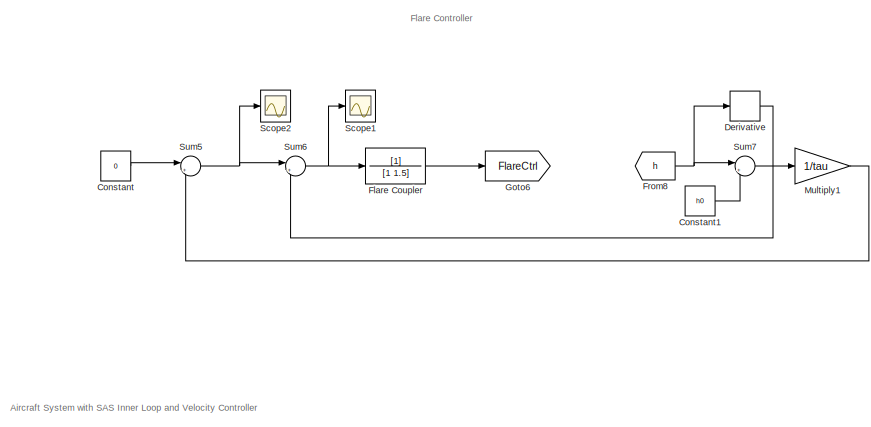
[diagram: root canvas - part 1/4, top left region]
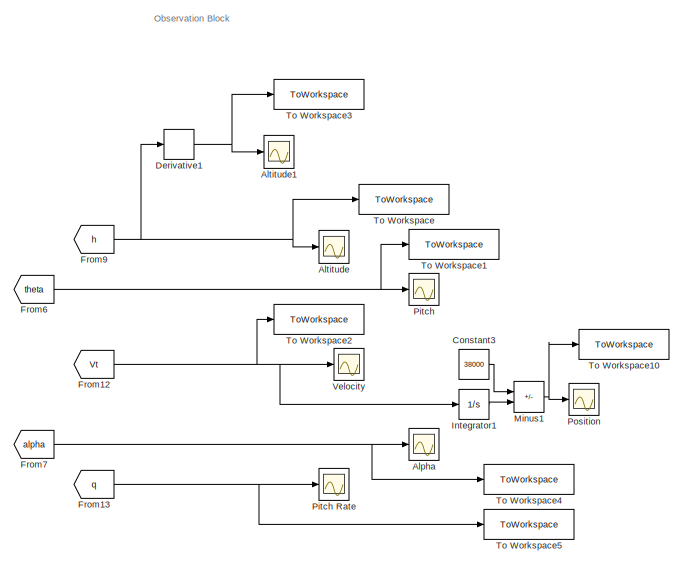
[diagram: root canvas - part 2/4, middle right region]
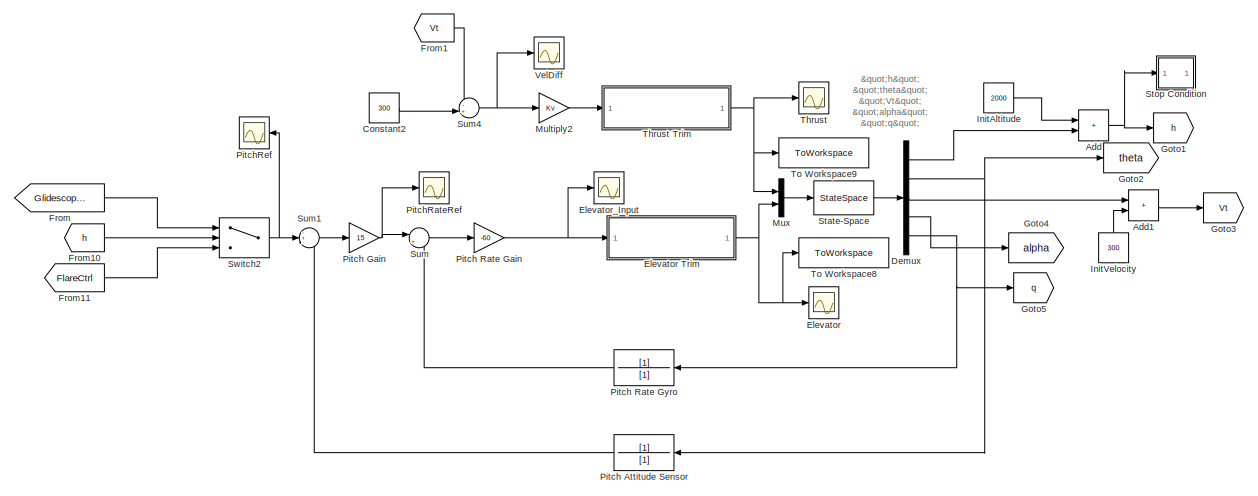
[diagram: root canvas - part 3/4, middle left region]
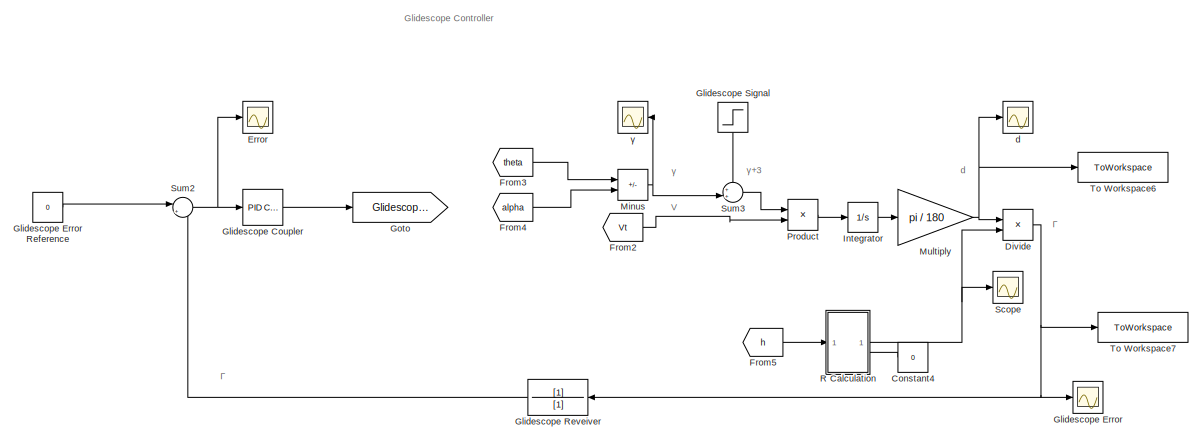
[diagram: root canvas - part 4/4, bottom left region]
MODEL slx_3c00ca6b378c
KIND model
CONFIG AbsTol = auto
CONFIG EnableMultiTasking = off
CONFIG FixedStep = auto
CONFIG MaxStep = auto
CONFIG MinStep = auto
CONFIG RelTol = 1e-3
CONFIG SampleTimeConstraint = Unconstrained
CONFIG SolverName = VariableStepAuto
CONFIG StartTime = 0.0
CONFIG StopTime = 250
BLOCK [Sum] Add
  IconShape = rectangular
BLOCK [Sum] Add1
  IconShape = rectangular
BLOCK [Scope] Alpha
  Floating = off
  NumInputPorts = 1
  ScopeSpecificationString = Simulink.scopes.TimeScopeBlockCfg('CurrentConfiguration', extmgr.ConfigurationSet(extmgr.Configuration('Core','General UI',true),extmgr.Configuration('Core','Source UI',true),extmgr.Configuration('Sources','WiredSimulink',true,'DataLoggingVariableName','ScopeData3'),extmgr.Configuration('Visuals','Time Domain',true,'SerializedDisplays',{struct('MinYLimReal','-5.64929','MaxYLimReal','2.93376','YLab...<+1484ch>
BLOCK [Scope] Altitude
  Floating = off
  NumInputPorts = 2
  ScopeSpecificationString = Simulink.scopes.TimeScopeBlockCfg('CurrentConfiguration', extmgr.ConfigurationSet(extmgr.Configuration('Core','General UI',true),extmgr.Configuration('Core','Source UI',true),extmgr.Configuration('Sources','WiredSimulink',true),extmgr.Configuration('Visuals','Time Domain',true,'SerializedDisplays',{struct('MinYLimReal','-155.81944','MaxYLimReal','2000.05527','YLabelReal','','MinYLimMag',' 0.00000'...<+1488ch>
BLOCK [Scope] Altitude1
  Floating = off
  NumInputPorts = 2
  ScopeSpecificationString = Simulink.scopes.TimeScopeBlockCfg('CurrentConfiguration', extmgr.ConfigurationSet(extmgr.Configuration('Core','General UI',true),extmgr.Configuration('Core','Source UI',true),extmgr.Configuration('Sources','WiredSimulink',true,'DataLoggingVariableName','ScopeData1'),extmgr.Configuration('Visuals','Time Domain',true,'SerializedDisplays',{struct('MinYLimReal','-28.09949','MaxYLimReal','3.73022','YLa...<+1546ch>
BLOCK [Constant] Constant
  Value = 0
BLOCK [Constant] Constant1
  Value = h0
BLOCK [Constant] Constant2
  Value = 300
BLOCK [Constant] Constant3
  Value = 38000
BLOCK [Constant] Constant4
  Value = 0
BLOCK [Demux] Demux
  Outputs = 5
BLOCK [Derivative] Derivative
BLOCK [Derivative] Derivative1
BLOCK [Product] Divide
  Inputs = */
BLOCK [Scope] Elevator
  Floating = off
  NumInputPorts = 1
  ScopeSpecificationString = Simulink.scopes.TimeScopeBlockCfg('CurrentConfiguration', extmgr.ConfigurationSet(extmgr.Configuration('Core','General UI',true),extmgr.Configuration('Core','Source UI',true),extmgr.Configuration('Sources','WiredSimulink',true,'DataLoggingVariableName','ScopeData11'),extmgr.Configuration('Visuals','Time Domain',true,'SerializedDisplays',{struct('MinYLimReal','-27.06089','MaxYLimReal','35.43911','Y...<+1487ch>
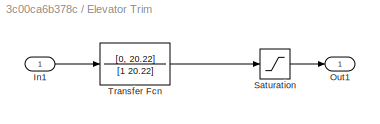
BLOCK [SubSystem] Elevator Trim
BLOCK [Inport] Elevator Trim/In1
BLOCK [Outport] Elevator Trim/Out1
BLOCK [Saturate] Elevator Trim/Saturation
  LowerLimit = -25 - xu_lo(14)
  UpperLimit = 25 - xu_lo(14)
BLOCK [TransferFcn] Elevator Trim/Transfer Fcn
  Denominator = [1 20.22]
  Numerator = [0, 20.22]
BLOCK [Scope] Elevator_Input
  Floating = off
  NumInputPorts = 1
  ScopeSpecificationString = Simulink.scopes.TimeScopeBlockCfg('CurrentConfiguration', extmgr.ConfigurationSet(extmgr.Configuration('Core','General UI',true),extmgr.Configuration('Core','Source UI',true),extmgr.Configuration('Sources','WiredSimulink',true,'DataLoggingVariableName','ScopeData16'),extmgr.Configuration('Visuals','Time Domain',true,'SerializedDisplays',{struct('MinYLimReal','-333402.42718','MaxYLimReal','333148.1...<+1520ch>
BLOCK [Scope] Error
  Floating = off
  NumInputPorts = 1
  ScopeSpecificationString = Simulink.scopes.TimeScopeBlockCfg('CurrentConfiguration', extmgr.ConfigurationSet(extmgr.Configuration('Core','General UI',true),extmgr.Configuration('Core','Source UI',true),extmgr.Configuration('Sources','WiredSimulink',true,'DataLoggingVariableName','ScopeData1'),extmgr.Configuration('Visuals','Time Domain',true,'SerializedDisplays',{struct('MinYLimReal','-29193196922013.24219','MaxYLimReal','3...<+1581ch>
BLOCK [TransferFcn] Flare Coupler
  Denominator = [1 1.5]
BLOCK [From] From
  GotoTag = GlidescopeCtrl
BLOCK [From] From1
  GotoTag = Vt
BLOCK [From] From10
  GotoTag = h
BLOCK [From] From11
  GotoTag = FlareCtrl
BLOCK [From] From12
  GotoTag = Vt
BLOCK [From] From13
  GotoTag = q
BLOCK [From] From2
  GotoTag = Vt
BLOCK [From] From3
  GotoTag = theta
BLOCK [From] From4
  GotoTag = alpha
BLOCK [From] From5
  GotoTag = h
BLOCK [From] From6
  GotoTag = theta
BLOCK [From] From7
  GotoTag = alpha
BLOCK [From] From8
  GotoTag = h
BLOCK [From] From9
  GotoTag = h
BLOCK [Reference] Glidescope Coupler  REF=slpidlib/PID Controller
  LibrarySourceBlock = simulink/Continuous/PID Controller
  SourceBlock = slpidlib/PID Controller
  SourceType = PID 1dof
BLOCK [Scope] Glidescope Error
  Floating = off
  NumInputPorts = 1
  ScopeSpecificationString = Simulink.scopes.TimeScopeBlockCfg('CurrentConfiguration', extmgr.ConfigurationSet(extmgr.Configuration('Core','General UI',true),extmgr.Configuration('Core','Source UI',true),extmgr.Configuration('Sources','WiredSimulink',true,'DataLoggingVariableName','ScopeData5'),extmgr.Configuration('Visuals','Time Domain',true,'SerializedDisplays',{struct('MinYLimReal','-0.16207','MaxYLimReal','0.45042','YLab...<+1454ch>
BLOCK [Constant] Glidescope Error Reference
  Value = 0
BLOCK [TransferFcn] Glidescope Reveiver
  Denominator = [1]
BLOCK [Step] Glidescope Signal
  After = 3
  NameLocation = top
  SampleTime = 0
  Time = 10
BLOCK [Goto] Goto
  GotoTag = GlidescopeCtrl
BLOCK [Goto] Goto1
  GotoTag = h
BLOCK [Goto] Goto2
  GotoTag = theta
BLOCK [Goto] Goto3
  GotoTag = Vt
BLOCK [Goto] Goto4
  GotoTag = alpha
BLOCK [Goto] Goto5
  GotoTag = q
BLOCK [Goto] Goto6
  GotoTag = FlareCtrl
BLOCK [Constant] InitAltitude
  Value = 2000
BLOCK [Constant] InitVelocity
  Value = 300
BLOCK [Integrator] Integrator
BLOCK [Integrator] Integrator1
BLOCK [Sum] Minus
  IconShape = rectangular
  Inputs = +-
BLOCK [Sum] Minus1
  IconShape = rectangular
  Inputs = +-
BLOCK [Gain] Multiply
  Gain = pi / 180
BLOCK [Gain] Multiply1
  Gain = 1/tau
BLOCK [Gain] Multiply2
  Gain = Kv
BLOCK [Mux] Mux
  DisplayOption = bar
  Inputs = 2
BLOCK [Scope] Pitch
  Floating = off
  NumInputPorts = 1
  ScopeSpecificationString = Simulink.scopes.TimeScopeBlockCfg('CurrentConfiguration', extmgr.ConfigurationSet(extmgr.Configuration('Core','General UI',true),extmgr.Configuration('Core','Source UI',true),extmgr.Configuration('Sources','WiredSimulink',true,'DataLoggingVariableName','ScopeData1'),extmgr.Configuration('Visuals','Time Domain',true,'SerializedDisplays',{struct('MinYLimReal','-9.06108','MaxYLimReal','1.00679','YLab...<+1455ch>
BLOCK [TransferFcn] Pitch Attitude Sensor
  Denominator = [1]
BLOCK [Gain] Pitch Gain
  Gain = 15
BLOCK [Scope] Pitch Rate
  Floating = off
  NumInputPorts = 1
  ScopeSpecificationString = Simulink.scopes.TimeScopeBlockCfg('CurrentConfiguration', extmgr.ConfigurationSet(extmgr.Configuration('Core','General UI',true),extmgr.Configuration('Core','Source UI',true),extmgr.Configuration('Sources','WiredSimulink',true,'DataLoggingVariableName','ScopeData4'),extmgr.Configuration('Visuals','Time Domain',true,'SerializedDisplays',{struct('MinYLimReal','-10.19051','MaxYLimReal','9.85478','YLa...<+1478ch>
BLOCK [Gain] Pitch Rate Gain
  Gain = -60
BLOCK [TransferFcn] Pitch Rate Gyro
  Denominator = [1]
BLOCK [Scope] PitchRateRef
  Floating = off
  NumInputPorts = 1
  ScopeSpecificationString = Simulink.scopes.TimeScopeBlockCfg('CurrentConfiguration', extmgr.ConfigurationSet(extmgr.Configuration('Core','General UI',true),extmgr.Configuration('Core','Source UI',true),extmgr.Configuration('Sources','WiredSimulink',true,'DataLoggingVariableName','ScopeData15'),extmgr.Configuration('Visuals','Time Domain',true,'SerializedDisplays',{struct('MinYLimReal','-7560.1339','MaxYLimReal','9065.59235'...<+1479ch>
BLOCK [Scope] PitchRef
  Floating = off
  NumInputPorts = 1
  ScopeSpecificationString = Simulink.scopes.TimeScopeBlockCfg('CurrentConfiguration', extmgr.ConfigurationSet(extmgr.Configuration('Core','General UI',true),extmgr.Configuration('Core','Source UI',true),extmgr.Configuration('Sources','WiredSimulink',true,'DataLoggingVariableName','ScopeData14'),extmgr.Configuration('Visuals','Time Domain',true,'SerializedDisplays',{struct('MinYLimReal','-92.97704','MaxYLimReal','10.33078','Y...<+1491ch>
BLOCK [Scope] Position
  Floating = off
  NumInputPorts = 1
  ScopeSpecificationString = Simulink.scopes.TimeScopeBlockCfg('CurrentConfiguration', extmgr.ConfigurationSet(extmgr.Configuration('Core','General UI',true),extmgr.Configuration('Core','Source UI',true),extmgr.Configuration('Sources','WiredSimulink',true,'DataLoggingVariableName','ScopeData4'),extmgr.Configuration('Visuals','Time Domain',true,'SerializedDisplays',{struct('MinYLimReal','-11930.32415','MaxYLimReal','10907.9938...<+1529ch>
BLOCK [Product] Product
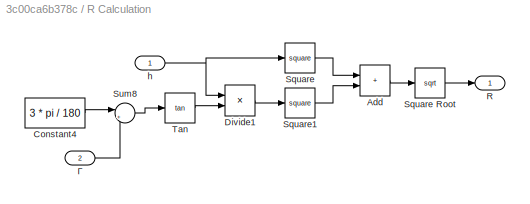
BLOCK [SubSystem] R Calculation
  PortSchema = {"entries":[{"content":{"sides":[{"content":{"connectorIds":["In1"]},"type":"ConnectorPlacement.EquallySpacedRectSide","uuid":"a58ea4d3-e7df-4749-b01a-fc0a42cf2060"},{"content":{"connectorIds":["Out1","In2"],"side":"RIGHT"},"type":"ConnectorPlacement.EquallySpacedRectSide","uuid":"27d5ff2b-4e59-4ac1-b665-58941cf67848"},{"content":{"side":"TOP"},"type":"ConnectorPlacement.EquallySpacedRectSide","uu...<+228ch>
BLOCK [Sum] R Calculation/Add
  IconShape = rectangular
BLOCK [Constant] R Calculation/Constant4
  Value = 3 * pi / 180
BLOCK [Product] R Calculation/Divide1
  Inputs = */
BLOCK [Outport] R Calculation/R
BLOCK [Math] R Calculation/Square
  Operator = square
BLOCK [Sqrt] R Calculation/Square Root
BLOCK [Math] R Calculation/Square1
  Operator = square
BLOCK [Sum] R Calculation/Sum8
  Inputs = |+-
BLOCK [Trigonometry] R Calculation/Tan
  Operator = tan
BLOCK [Inport] R Calculation/h
BLOCK [Inport] R Calculation/Γ
  Port = 2
BLOCK [Scope] Scope
  Floating = off
  NumInputPorts = 1
  ScopeSpecificationString = Simulink.scopes.TimeScopeBlockCfg('CurrentConfiguration', extmgr.ConfigurationSet(extmgr.Configuration('Core','General UI',true),extmgr.Configuration('Core','Source UI',true),extmgr.Configuration('Sources','WiredSimulink',true,'DataLoggingVariableName','ScopeData8'),extmgr.Configuration('Visuals','Time Domain',true,'SerializedDisplays',{struct('MinYLimReal','-4776.98082','MaxYLimReal','42992.82735...<+1799ch>
BLOCK [Scope] Scope1
  Floating = off
  NumInputPorts = 1
  ScopeSpecificationString = Simulink.scopes.TimeScopeBlockCfg('CurrentConfiguration', extmgr.ConfigurationSet(extmgr.Configuration('Core','General UI',true),extmgr.Configuration('Core','Source UI',true),extmgr.Configuration('Sources','WiredSimulink',true,'DataLoggingVariableName','ScopeData2'),extmgr.Configuration('Visuals','Time Domain',true),extmgr.Configuration('Tools','Plot Navigation',true),extmgr.Configuration('Tools',...<+40ch>
BLOCK [Scope] Scope2
  Floating = off
  NumInputPorts = 1
  ScopeSpecificationString = Simulink.scopes.TimeScopeBlockCfg('CurrentConfiguration', extmgr.ConfigurationSet(extmgr.Configuration('Core','General UI',true),extmgr.Configuration('Core','Source UI',true),extmgr.Configuration('Sources','WiredSimulink',true,'DataLoggingVariableName','ScopeData3'),extmgr.Configuration('Visuals','Time Domain',true,'SerializedDisplays',{struct('MinYLimReal','-21.33804','MaxYLimReal','19.16918','YL...<+1477ch>
BLOCK [StateSpace] State-Space
  A = A_ac_p8
  B = B_ac_p8
  C = C_ac_p8
  D = D_ac_p8
  InitialCondition = 0
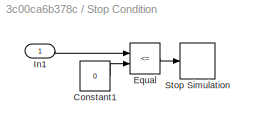
BLOCK [SubSystem] Stop Condition
BLOCK [Constant] Stop Condition/Constant1
  Value = 0
BLOCK [RelationalOperator] Stop Condition/Equal
  InputSameDT = off
  Operator = <=
  OutDataTypeStr = boolean
  RndMeth = Simplest
BLOCK [Inport] Stop Condition/In1
BLOCK [Stop] Stop Condition/Stop Simulation
BLOCK [Sum] Sum
  Inputs = |+-
BLOCK [Sum] Sum1
  Inputs = -+-
BLOCK [Sum] Sum2
  Inputs = |+-
BLOCK [Sum] Sum3
  Inputs = ++|
BLOCK [Sum] Sum4
  Inputs = -+|
BLOCK [Sum] Sum5
  Inputs = |+-
BLOCK [Sum] Sum6
  Inputs = |+-
BLOCK [Sum] Sum7
  Inputs = |++
BLOCK [Switch] Switch2
  Criteria = u2 > Threshold
  InputSameDT = off
  SaturateOnIntegerOverflow = off
  Threshold = hf
BLOCK [Scope] Thrust
  Floating = off
  NumInputPorts = 1
  ScopeSpecificationString = Simulink.scopes.TimeScopeBlockCfg('CurrentConfiguration', extmgr.ConfigurationSet(extmgr.Configuration('Core','General UI',true),extmgr.Configuration('Core','Source UI',true),extmgr.Configuration('Sources','WiredSimulink',true,'DataLoggingVariableName','ScopeData12'),extmgr.Configuration('Visuals','Time Domain',true,'SerializedDisplays',{struct('MinYLimReal','-1313.5697','MaxYLimReal','145.95773',...<+1504ch>
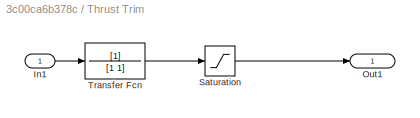
BLOCK [SubSystem] Thrust Trim 
BLOCK [Inport] Thrust Trim /In1
BLOCK [Outport] Thrust Trim /Out1
BLOCK [Saturate] Thrust Trim /Saturation
  LowerLimit = 1000 - xu_lo(13)
  UpperLimit = 19000 - xu_lo(13)
BLOCK [TransferFcn] Thrust Trim /Transfer Fcn
  Denominator = [1 1]
BLOCK [ToWorkspace] To Workspace
  FixptAsFi = on
  MaxDataPoints = inf
  SampleTime = -1
  SaveFormat = Timeseries
  VariableName = h
BLOCK [ToWorkspace] To Workspace1
  FixptAsFi = on
  MaxDataPoints = inf
  SampleTime = -1
  SaveFormat = Timeseries
  VariableName = theta
BLOCK [ToWorkspace] To Workspace10
  FixptAsFi = on
  MaxDataPoints = inf
  SampleTime = -1
  SaveFormat = Timeseries
  VariableName = pos
BLOCK [ToWorkspace] To Workspace2
  FixptAsFi = on
  MaxDataPoints = inf
  SampleTime = -1
  SaveFormat = Timeseries
  VariableName = vt
BLOCK [ToWorkspace] To Workspace3
  FixptAsFi = on
  MaxDataPoints = inf
  SampleTime = -1
  SaveFormat = Timeseries
  VariableName = vy
BLOCK [ToWorkspace] To Workspace4
  FixptAsFi = on
  MaxDataPoints = inf
  SampleTime = -1
  SaveFormat = Timeseries
  VariableName = alpha
BLOCK [ToWorkspace] To Workspace5
  FixptAsFi = on
  MaxDataPoints = inf
  SampleTime = -1
  SaveFormat = Timeseries
  VariableName = q
BLOCK [ToWorkspace] To Workspace6
  FixptAsFi = on
  MaxDataPoints = inf
  SampleTime = -1
  SaveFormat = Timeseries
  VariableName = d
BLOCK [ToWorkspace] To Workspace7
  FixptAsFi = on
  MaxDataPoints = inf
  SampleTime = -1
  SaveFormat = Timeseries
  VariableName = lambda
BLOCK [ToWorkspace] To Workspace8
  FixptAsFi = on
  MaxDataPoints = inf
  SampleTime = -1
  SaveFormat = Timeseries
  VariableName = elevator
BLOCK [ToWorkspace] To Workspace9
  FixptAsFi = on
  MaxDataPoints = inf
  SampleTime = -1
  SaveFormat = Timeseries
  VariableName = thrust
BLOCK [Scope] VelDiff
  Floating = off
  NumInputPorts = 1
  ScopeSpecificationString = Simulink.scopes.TimeScopeBlockCfg('CurrentConfiguration', extmgr.ConfigurationSet(extmgr.Configuration('Core','General UI',true),extmgr.Configuration('Core','Source UI',true),extmgr.Configuration('Sources','WiredSimulink',true,'DataLoggingVariableName','ScopeData13'),extmgr.Configuration('Visuals','Time Domain',true,'SerializedDisplays',{struct('MinYLimReal','-2029.84029','MaxYLimReal','231.27673'...<+1473ch>
BLOCK [Scope] Velocity 
  Floating = off
  NumInputPorts = 1
  ScopeSpecificationString = Simulink.scopes.TimeScopeBlockCfg('CurrentConfiguration', extmgr.ConfigurationSet(extmgr.Configuration('Core','General UI',true),extmgr.Configuration('Core','Source UI',true),extmgr.Configuration('Sources','WiredSimulink',true,'DataLoggingVariableName','ScopeData2'),extmgr.Configuration('Visuals','Time Domain',true,'SerializedDisplays',{struct('MinYLimReal','298.53772','MaxYLimReal','313.14535','Y...<+1466ch>
BLOCK [Scope] d
  Floating = off
  NumInputPorts = 1
  ScopeSpecificationString = Simulink.scopes.TimeScopeBlockCfg('CurrentConfiguration', extmgr.ConfigurationSet(extmgr.Configuration('Core','General UI',true),extmgr.Configuration('Core','Source UI',true),extmgr.Configuration('Sources','WiredSimulink',true,'DataLoggingVariableName','ScopeData9'),extmgr.Configuration('Visuals','Time Domain',true,'SerializedDisplays',{struct('MinYLimReal','-9.71976','MaxYLimReal','61.39902','YLa...<+1844ch>
BLOCK [Scope] γ
  Floating = off
  NumInputPorts = 1
  ScopeSpecificationString = Simulink.scopes.TimeScopeBlockCfg('CurrentConfiguration', extmgr.ConfigurationSet(extmgr.Configuration('Core','General UI',true),extmgr.Configuration('Core','Source UI',true),extmgr.Configuration('Sources','WiredSimulink',true,'DataLoggingVariableName','ScopeData10'),extmgr.Configuration('Visuals','Time Domain',true,'SerializedDisplays',{struct('MinYLimReal','-123.26554','MaxYLimReal','46.80125','...<+1495ch>
ANNOTATION (root): "h" "theta" "Vt" "alpha" "q"
ANNOTATION (root): V
ANNOTATION (root): d
ANNOTATION (root): Γ
ANNOTATION (root): γ+3
ANNOTATION (root): γ
ANNOTATION (root): Aircraft System with SAS Inner Loop and Velocity Controller
ANNOTATION (root): Flare Controller
ANNOTATION (root): Glidescope Controller
ANNOTATION (root): Observation Block
LINE Add1:1 -> Goto3:1
NET Add:1 -> Goto1:1, Stop Condition:1
LINE Constant1:1 -> Sum7:2
LINE Constant2:1 -> Sum4:2
LINE Constant3:1 -> Minus1:1
LINE Constant4:1 -> R Calculation:2
LINE Constant:1 -> Sum5:1
LINE Demux:1 -> Add:2
NET Demux:2 -> Goto2:1, Pitch Attitude Sensor:1
LINE Demux:3 -> Add1:1
LINE Demux:4 -> Goto4:1
NET Demux:5 -> Goto5:1, Pitch Rate Gyro:1
NET Derivative1:1 -> Altitude1:1, To Workspace3:1
LINE Derivative:1 -> Sum6:2
NET Divide:1 -> Glidescope Error:1, Glidescope Reveiver:1, To Workspace7:1
LINE Elevator Trim/In1:1 -> Elevator Trim/Transfer Fcn:1
LINE Elevator Trim/Saturation:1 -> Elevator Trim/Out1:1
LINE Elevator Trim/Transfer Fcn:1 -> Elevator Trim/Saturation:1
NET Elevator Trim:1 -> Elevator:1, Mux:2, To Workspace8:1
LINE Flare Coupler:1 -> Goto6:1
LINE From10:1 -> Switch2:2
LINE From11:1 -> Switch2:3
NET From12:1 -> Integrator1:1, To Workspace2:1, Velocity :1
NET From13:1 -> Pitch Rate:1, To Workspace5:1
LINE From1:1 -> Sum4:1
LINE From2:1 -> Product:2
LINE From3:1 -> Minus:1
LINE From4:1 -> Minus:2
LINE From5:1 -> R Calculation:1
NET From6:1 -> Pitch:1, To Workspace1:1
NET From7:1 -> Alpha:1, To Workspace4:1
NET From8:1 -> Derivative:1, Sum7:1
NET From9:1 -> Altitude:1, Derivative1:1, To Workspace:1
LINE From:1 -> Switch2:1
LINE Glidescope Coupler:1 -> Goto:1
LINE Glidescope Error Reference:1 -> Sum2:1
LINE Glidescope Reveiver:1 -> Sum2:2
LINE Glidescope Signal:1 -> Sum3:1
LINE InitAltitude:1 -> Add:1
LINE InitVelocity:1 -> Add1:2
LINE Integrator1:1 -> Minus1:2
LINE Integrator:1 -> Multiply:1
NET Minus1:1 -> Position:1, To Workspace10:1
NET Minus:1 -> Sum3:2, γ:1
LINE Multiply1:1 -> Sum5:2
LINE Multiply2:1 -> Thrust Trim :1
NET Multiply:1 -> Divide:1, To Workspace6:1, d:1
LINE Mux:1 -> State-Space:1
LINE Pitch Attitude Sensor:1 -> Sum1:3
NET Pitch Gain:1 -> PitchRateRef:1, Sum:1
NET Pitch Rate Gain:1 -> Elevator Trim:1, Elevator_Input:1
LINE Pitch Rate Gyro:1 -> Sum:2
LINE Product:1 -> Integrator:1
LINE R Calculation/Add:1 -> R Calculation/Square Root:1
LINE R Calculation/Constant4:1 -> R Calculation/Sum8:1
LINE R Calculation/Divide1:1 -> R Calculation/Square1:1
LINE R Calculation/Square Root:1 -> R Calculation/R:1
LINE R Calculation/Square1:1 -> R Calculation/Add:2
LINE R Calculation/Square:1 -> R Calculation/Add:1
LINE R Calculation/Sum8:1 -> R Calculation/Tan:1
LINE R Calculation/Tan:1 -> R Calculation/Divide1:2
NET R Calculation/h:1 -> R Calculation/Divide1:1, R Calculation/Square:1
LINE R Calculation/Γ:1 -> R Calculation/Sum8:2
NET R Calculation:1 -> Divide:2, Scope:1
LINE State-Space:1 -> Demux:1
LINE Stop Condition/Constant1:1 -> Stop Condition/Equal:2
LINE Stop Condition/Equal:1 -> Stop Condition/Stop Simulation:1
LINE Stop Condition/In1:1 -> Stop Condition/Equal:1
LINE Sum1:1 -> Pitch Gain:1
NET Sum2:1 -> Error:1, Glidescope Coupler:1
LINE Sum3:1 -> Product:1
NET Sum4:1 -> Multiply2:1, VelDiff:1
NET Sum5:1 -> Scope2:1, Sum6:1
NET Sum6:1 -> Flare Coupler:1, Scope1:1
LINE Sum7:1 -> Multiply1:1
LINE Sum:1 -> Pitch Rate Gain:1
NET Switch2:1 -> PitchRef:1, Sum1:2
LINE Thrust Trim /In1:1 -> Thrust Trim /Transfer Fcn:1
LINE Thrust Trim /Saturation:1 -> Thrust Trim /Out1:1
LINE Thrust Trim /Transfer Fcn:1 -> Thrust Trim /Saturation:1
NET Thrust Trim :1 -> Mux:1, Thrust:1, To Workspace9:1
note: NET lines group one-source signal fan-out (src -> all destinations, sorted); 1:1 wires keep LINE
